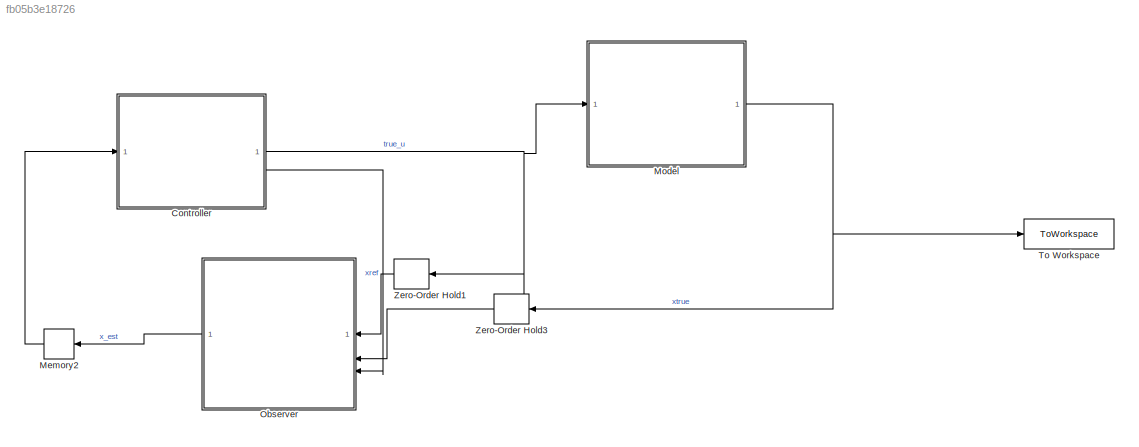
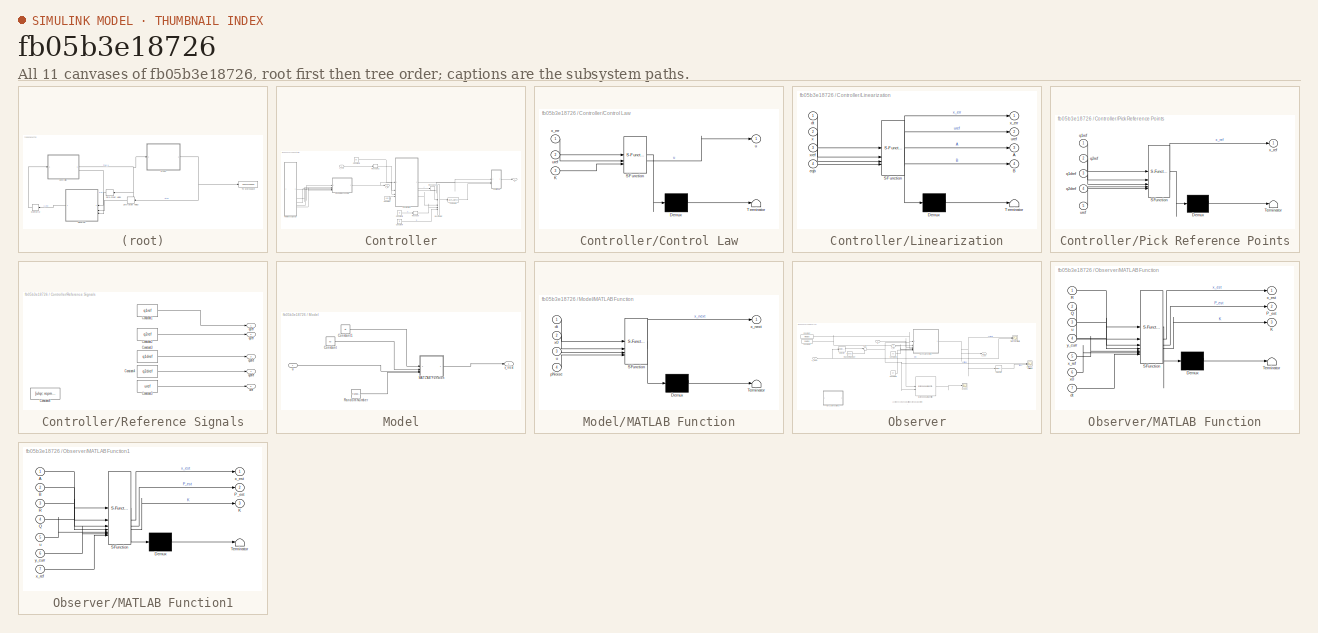
[diagram: thumbnail index - all 11 canvases of the model, root first then tree order]
MODEL slx_fb05b3e18726
KIND model
CONFIG AbsTol = auto
CONFIG EnableMultiTasking = off
CONFIG FixedStep = dt
CONFIG InitFcn = simpb_init
CONFIG MaxStep = auto
CONFIG MinStep = auto
CONFIG RelTol = 1e-3
CONFIG SampleTimeConstraint = Unconstrained
CONFIG SolverName = FixedStepAuto
CONFIG StartTime = 0.0
CONFIG StopTime = 10
BLOCK [SubSystem] Controller
BLOCK [BusCreator] Controller/Bus Creator
  DisplayOption = bar
  InheritFromInputs = on
  Inputs = 4
BLOCK [MATLABFcn] Controller/Compute K
  MATLABFcn = dlqr( reshape(u(1:16),4,4), reshape(u(17:20),4,1), reshape(u(21:36),4,4), u(37) )
  Output1D = off
  OutputDimensions = [1,4]
BLOCK [Constant] Controller/Constant
  Value = eqb
BLOCK [Constant] Controller/Constant1
  Value = dt
BLOCK [Constant] Controller/Constant6
  SampleTime = -1
  Value = Q
BLOCK [Constant] Controller/Constant7
  SampleTime = -1
  Value = R
BLOCK [SubSystem] Controller/Control Law
  ErrorFcn = Stateflow.Translate.translate
  PermitHierarchicalResolution = ExplicitOnly
  SFBlockType = MATLAB Function
  TreatAsAtomicUnit = on
BLOCK [Demux] Controller/Control Law/ Demux 
  Outputs = 1
BLOCK [S-Function] Controller/Control Law/ SFunction 
  EnableBusSupport = on
  FunctionName = sf_sfun
  PortCounts = [3 2]
  SFcnIsStateOwnerBlock = off
  SFunctionDeploymentMode = off
  Tag = Stateflow S-Function 4
BLOCK [Terminator] Controller/Control Law/ Terminator 
BLOCK [Inport] Controller/Control Law/K
  Port = 3
BLOCK [Outport] Controller/Control Law/u
BLOCK [Inport] Controller/Control Law/uref
  Port = 2
BLOCK [Inport] Controller/Control Law/x_err
BLOCK [SubSystem] Controller/Linearization
  ErrorFcn = Stateflow.Translate.translate
  PermitHierarchicalResolution = ExplicitOnly
  SFBlockType = MATLAB Function
  TreatAsAtomicUnit = on
BLOCK [Demux] Controller/Linearization/ Demux 
  Outputs = 1
BLOCK [S-Function] Controller/Linearization/ SFunction 
  EnableBusSupport = on
  FunctionName = sf_sfun
  PortCounts = [4 5]
  SFcnIsStateOwnerBlock = off
  SFunctionDeploymentMode = off
  Tag = Stateflow S-Function 2
BLOCK [Terminator] Controller/Linearization/ Terminator 
BLOCK [Outport] Controller/Linearization/A
  Port = 3
BLOCK [Outport] Controller/Linearization/B
  Port = 4
BLOCK [Inport] Controller/Linearization/dt
BLOCK [Inport] Controller/Linearization/eqb
  Port = 4
BLOCK [Outport] Controller/Linearization/uref
  Port = 2
BLOCK [Inport] Controller/Linearization/x
  Port = 2
BLOCK [Outport] Controller/Linearization/x_err
BLOCK [Inport] Controller/Linearization/xref
  Port = 3
BLOCK [SubSystem] Controller/Pick Reference Points
  ErrorFcn = Stateflow.Translate.translate
  PermitHierarchicalResolution = ExplicitOnly
  SFBlockType = MATLAB Function
  TreatAsAtomicUnit = on
BLOCK [Demux] Controller/Pick Reference Points/ Demux 
  Outputs = 1
BLOCK [S-Function] Controller/Pick Reference Points/ SFunction 
  EnableBusSupport = on
  FunctionName = sf_sfun
  PortCounts = [5 2]
  SFcnIsStateOwnerBlock = off
  SFunctionDeploymentMode = off
  Tag = Stateflow S-Function 3
BLOCK [Terminator] Controller/Pick Reference Points/ Terminator 
BLOCK [Inport] Controller/Pick Reference Points/q1dref
  Port = 3
BLOCK [Inport] Controller/Pick Reference Points/q1ref
BLOCK [Inport] Controller/Pick Reference Points/q2dref
  Port = 4
BLOCK [Inport] Controller/Pick Reference Points/q2ref
  Port = 2
BLOCK [Inport] Controller/Pick Reference Points/uref
  Port = 5
BLOCK [Outport] Controller/Pick Reference Points/x_ref
BLOCK [SubSystem] Controller/Reference Signals
BLOCK [Constant] Controller/Reference Signals/Constant1
  SampleTime = -1
  Value = q1ref
BLOCK [Constant] Controller/Reference Signals/Constant2
  SampleTime = -1
  Value = q2ref
BLOCK [Constant] Controller/Reference Signals/Constant3
  SampleTime = -1
  Value = q1dref
BLOCK [Constant] Controller/Reference Signals/Constant4
  SampleTime = -1
  Value = q2dref
BLOCK [Constant] Controller/Reference Signals/Constant5
  SampleTime = -1
  Value = uref
BLOCK [Constant] Controller/Reference Signals/Constant8
  Commented = on
  SampleTime = -1
  Value = [ulqr; repmat(ulqr(end), 10000, 1)]%ulqr
BLOCK [Outport] Controller/Reference Signals/q1dref
  Port = 3
BLOCK [Outport] Controller/Reference Signals/q1ref
BLOCK [Outport] Controller/Reference Signals/q2dref
  Port = 4
BLOCK [Outport] Controller/Reference Signals/q2ref
  Port = 2
BLOCK [Outport] Controller/Reference Signals/uref
  Port = 5
BLOCK [Reshape] Controller/Reshape
BLOCK [Reshape] Controller/Reshape1
BLOCK [Reshape] Controller/Reshape2
  OutputDimensionality = Customize
  OutputDimensions = [4,1]
BLOCK [Outport] Controller/u
BLOCK [Inport] Controller/x_curr
BLOCK [Outport] Controller/x_ref
  Port = 2
BLOCK [Memory] Memory2
  InitialCondition = x0
  NameLocation = top
BLOCK [SubSystem] Model
BLOCK [Constant] Model/Constant
  Value = x0
BLOCK [Constant] Model/Constant1
  Value = dt
BLOCK [SubSystem] Model/MATLAB Function
  ErrorFcn = Stateflow.Translate.translate
  PermitHierarchicalResolution = ExplicitOnly
  SFBlockType = MATLAB Function
  TreatAsAtomicUnit = on
BLOCK [Demux] Model/MATLAB Function/ Demux 
  Outputs = 1
BLOCK [S-Function] Model/MATLAB Function/ SFunction 
  EnableBusSupport = on
  FunctionName = sf_sfun
  PortCounts = [4 2]
  SFcnIsStateOwnerBlock = off
  SFunctionDeploymentMode = off
  Tag = Stateflow S-Function 1
BLOCK [Terminator] Model/MATLAB Function/ Terminator 
BLOCK [Inport] Model/MATLAB Function/dt
BLOCK [Inport] Model/MATLAB Function/pNoise
  Port = 4
BLOCK [Inport] Model/MATLAB Function/u
  Port = 3
BLOCK [Inport] Model/MATLAB Function/x0
  Port = 2
BLOCK [Outport] Model/MATLAB Function/x_next
BLOCK [RandomNumber] Model/Random Number
  SampleTime = dt
  Variance = pvar
BLOCK [Inport] Model/u
BLOCK [Outport] Model/x_next
BLOCK [SubSystem] Observer
  NameLocation = top
BLOCK [Constant] Observer/Constant
  Value = mNoise
BLOCK [Constant] Observer/Constant1
  Value = pNoise
BLOCK [Constant] Observer/Constant2
  Value = dt
BLOCK [Constant] Observer/Constant3
  Value = x0
BLOCK [Reference] Observer/Extended Kalman Filter  REF=sharedTrackingLibrary/Extended Kalman Filter
  LibrarySourceBlock = cstblocks/State Estimation/Extended Kalman Filter
  SourceBlock = sharedTrackingLibrary/Extended Kalman Filter
  SourceType = Extended Kalman Filter
BLOCK [Scope] Observer/Filtered vs Unfiltered
  Floating = off
  NumInputPorts = 2
  ScopeSpecificationString = Simulink.scopes.TimeScopeBlockCfg('CurrentConfiguration', extmgr.ConfigurationSet(extmgr.Configuration('Core','General UI',true),extmgr.Configuration('Core','Source UI',true),extmgr.Configuration('Sources','WiredSimulink',true,'DataLoggingVariableName','ScopeData1'),extmgr.Configuration('Visuals','Time Domain',true,'SerializedDisplays',{struct('MinYLimReal','-2.62895','MaxYLimReal','2.14154','YLab...<+1812ch>
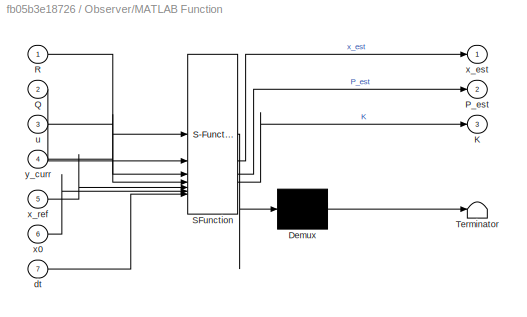
BLOCK [SubSystem] Observer/MATLAB Function
  ErrorFcn = Stateflow.Translate.translate
  PermitHierarchicalResolution = ExplicitOnly
  SFBlockType = MATLAB Function
  TreatAsAtomicUnit = on
BLOCK [Demux] Observer/MATLAB Function/ Demux 
  Outputs = 1
BLOCK [S-Function] Observer/MATLAB Function/ SFunction 
  EnableBusSupport = on
  FunctionName = sf_sfun
  PortCounts = [7 4]
  SFcnIsStateOwnerBlock = off
  SFunctionDeploymentMode = off
  Tag = Stateflow S-Function 5
BLOCK [Terminator] Observer/MATLAB Function/ Terminator 
BLOCK [Outport] Observer/MATLAB Function/K
  Port = 3
BLOCK [Outport] Observer/MATLAB Function/P_est
  Port = 2
BLOCK [Inport] Observer/MATLAB Function/Q
  Port = 2
BLOCK [Inport] Observer/MATLAB Function/R
BLOCK [Inport] Observer/MATLAB Function/dt
  Port = 7
BLOCK [Inport] Observer/MATLAB Function/u
  Port = 3
BLOCK [Inport] Observer/MATLAB Function/x0
  Port = 6
BLOCK [Outport] Observer/MATLAB Function/x_est
BLOCK [Inport] Observer/MATLAB Function/x_ref
  Port = 5
BLOCK [Inport] Observer/MATLAB Function/y_curr
  Port = 4
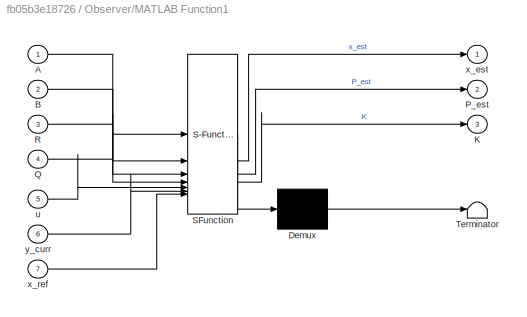
BLOCK [SubSystem] Observer/MATLAB Function1
  Commented = on
  ErrorFcn = Stateflow.Translate.translate
  PermitHierarchicalResolution = ExplicitOnly
  SFBlockType = MATLAB Function
  TreatAsAtomicUnit = on
BLOCK [Demux] Observer/MATLAB Function1/ Demux 
  Outputs = 1
BLOCK [S-Function] Observer/MATLAB Function1/ SFunction 
  EnableBusSupport = on
  FunctionName = sf_sfun
  PortCounts = [7 4]
  SFcnIsStateOwnerBlock = off
  SFunctionDeploymentMode = off
  Tag = Stateflow S-Function 6
BLOCK [Terminator] Observer/MATLAB Function1/ Terminator 
BLOCK [Inport] Observer/MATLAB Function1/A
BLOCK [Inport] Observer/MATLAB Function1/B
  Port = 2
BLOCK [Outport] Observer/MATLAB Function1/K
  Port = 3
BLOCK [Outport] Observer/MATLAB Function1/P_est
  Port = 2
BLOCK [Inport] Observer/MATLAB Function1/Q
  Port = 4
BLOCK [Inport] Observer/MATLAB Function1/R
  Port = 3
BLOCK [Inport] Observer/MATLAB Function1/u
  Port = 5
BLOCK [Outport] Observer/MATLAB Function1/x_est
BLOCK [Inport] Observer/MATLAB Function1/x_ref
  Port = 7
BLOCK [Inport] Observer/MATLAB Function1/y_curr
  Port = 6
BLOCK [RandomNumber] Observer/Random Number
  SampleTime = dt
  Variance = mvar
BLOCK [Scope] Observer/Scope2
  Floating = off
  NumInputPorts = 1
  ScopeSpecificationString = Simulink.scopes.TimeScopeBlockCfg('CurrentConfiguration', extmgr.ConfigurationSet(extmgr.Configuration('Core','General UI',true),extmgr.Configuration('Core','Source UI',true),extmgr.Configuration('Sources','WiredSimulink',true,'DataLoggingVariableName','ScopeData2'),extmgr.Configuration('Visuals','Time Domain',true,'SerializedDisplays',{struct('MinYLimReal','-198.59066','MaxYLimReal','202.07567','...<+1751ch>
BLOCK [Selector] Observer/Selector
  IndexOptions = Index vector (dialog)
  Indices = [1 2]
  InputPortWidth = 4
  OutputSizes = 1
BLOCK [Selector] Observer/Selector1
  IndexOptions = Index vector (dialog)
  Indices = [1 2]
  InputPortWidth = 4
  OutputSizes = 1
BLOCK [Sum] Observer/Sum
  Inputs = |++
BLOCK [Scope] Observer/Truth vs Estimate
  Floating = off
  NumInputPorts = 2
  ScopeSpecificationString = Simulink.scopes.TimeScopeBlockCfg('CurrentConfiguration', extmgr.ConfigurationSet(extmgr.Configuration('Core','General UI',true),extmgr.Configuration('Core','Source UI',true),extmgr.Configuration('Sources','WiredSimulink',true,'DataLoggingVariableName','ScopeData4'),extmgr.Configuration('Visuals','Time Domain',true,'SerializedDisplays',{struct('MinYLimReal','-15.99799','MaxYLimReal','16.14096','YL...<+1842ch>
BLOCK [Inport] Observer/u
BLOCK [Outport] Observer/x_est
BLOCK [Inport] Observer/x_next
  Port = 2
BLOCK [Inport] Observer/x_ref
  Port = 3
BLOCK [ToWorkspace] To Workspace
  FixptAsFi = on
  MaxDataPoints = inf
  SampleTime = -1
  SaveFormat = Timeseries
  VariableName = xcurrout
BLOCK [ZeroOrderHold] Zero-Order Hold1
  NameLocation = top
  SampleTime = dt
BLOCK [ZeroOrderHold] Zero-Order Hold3
  NameLocation = top
  SampleTime = dt
ANNOTATION Observer: Just for checking how built-in function would perform ,
LINE Controller/Bus Creator:1 -> Controller/Compute K:1
LINE Controller/Compute K:1 -> Controller/Control Law:3
LINE Controller/Constant1:1 -> Controller/Linearization:1
LINE Controller/Constant6:1 -> Controller/Reshape:1
LINE Controller/Constant7:1 -> Controller/Bus Creator:4
LINE Controller/Constant:1 -> Controller/Linearization:4
LINE Controller/Control Law:1 -> Controller/u:1
LINE Controller/Linearization:1 -> Controller/Control Law:1
LINE Controller/Linearization:2 -> Controller/Control Law:2
LINE Controller/Linearization:3 -> Controller/Reshape1:1
LINE Controller/Linearization:4 -> Controller/Bus Creator:2
NET Controller/Pick Reference Points:1 -> Controller/Linearization:3, Controller/x_ref:1
LINE Controller/Reference Signals/Constant1:1 -> Controller/Reference Signals/q1ref:1
LINE Controller/Reference Signals/Constant2:1 -> Controller/Reference Signals/q2ref:1
LINE Controller/Reference Signals/Constant3:1 -> Controller/Reference Signals/q1dref:1
LINE Controller/Reference Signals/Constant4:1 -> Controller/Reference Signals/q2dref:1
LINE Controller/Reference Signals/Constant5:1 -> Controller/Reference Signals/uref:1
LINE Controller/Reference Signals:1 -> Controller/Pick Reference Points:1
LINE Controller/Reference Signals:2 -> Controller/Pick Reference Points:2
LINE Controller/Reference Signals:3 -> Controller/Pick Reference Points:3
LINE Controller/Reference Signals:4 -> Controller/Pick Reference Points:4
LINE Controller/Reference Signals:5 -> Controller/Pick Reference Points:5
LINE Controller/Reshape1:1 -> Controller/Bus Creator:1
LINE Controller/Reshape2:1 -> Controller/Linearization:2
LINE Controller/Reshape:1 -> Controller/Bus Creator:3
LINE Controller/x_curr:1 -> Controller/Reshape2:1
NET Controller:1 -> Model:1, Zero-Order Hold1:1
LINE Controller:2 -> Observer:3
LINE Memory2:1 -> Controller:1
LINE Model/Constant1:1 -> Model/MATLAB Function:1
LINE Model/Constant:1 -> Model/MATLAB Function:2
LINE Model/MATLAB Function:1 -> Model/x_next:1
LINE Model/Random Number:1 -> Model/MATLAB Function:4
LINE Model/u:1 -> Model/MATLAB Function:3
NET Model:1 -> To Workspace:1, Zero-Order Hold3:1
LINE Observer/Constant1:1 -> Observer/MATLAB Function:2
LINE Observer/Constant2:1 -> Observer/MATLAB Function:7
LINE Observer/Constant3:1 -> Observer/MATLAB Function:6
LINE Observer/Constant:1 -> Observer/MATLAB Function:1
LINE Observer/Extended Kalman Filter:1 -> Observer/Scope2:1
NET Observer/MATLAB Function:1 -> Observer/Selector1:1, Observer/Truth vs Estimate:1, Observer/x_est:1
LINE Observer/Random Number:1 -> Observer/Sum:2
LINE Observer/Selector1:1 -> Observer/Filtered vs Unfiltered:2
LINE Observer/Selector:1 -> Observer/Sum:1
NET Observer/Sum:1 -> Observer/Extended Kalman Filter:2, Observer/Filtered vs Unfiltered:1, Observer/MATLAB Function:4
NET Observer/u:1 -> Observer/Extended Kalman Filter:1, Observer/MATLAB Function:3
NET Observer/x_next:1 -> Observer/Selector:1, Observer/Truth vs Estimate:2
LINE Observer/x_ref:1 -> Observer/MATLAB Function:5
LINE Observer:1 -> Memory2:1
LINE Zero-Order Hold1:1 -> Observer:1
LINE Zero-Order Hold3:1 -> Observer:2
note: NET lines group one-source signal fan-out (src -> all destinations, sorted); 1:1 wires keep LINE
CHART Model/MATLAB Function states=1 transitions=1
  STATE_LABEL 'eML_blk_kernel()'
  STATE_LABEL 'SCRIPT:\nfunction x_next = fcn(dt, x0, u, pNoise)\n\n%From REal pendulum in lab\np.theta1 = 0.0308; \np.theta2 = 0.0106;\np.theta3 = 0.0095;\np.theta4 = 0.2087;\np.theta5 = 0.063;\np.g = 9.8;\n\npersistent x;\nif isempty(x)\n    x = x0;\nend\n\nx_next = rk4_step(@(xx, uu) dx_pb_lqrreal(0,xx, uu, p), x, u,dt);\nx_next(1) = wrapToPi(x_next(1));\nx_next(2) = wrapToPi(x_next(2));\n\nx_next = x_next + pNoise;\nx = x_next;\n...<+4ch>'
CHART Controller/Linearization states=1 transitions=1
  STATE_LABEL 'eML_blk_kernel()'
  STATE_LABEL 'SCRIPT:\nfunction [x_err, uref, A,B]  = fcn(dt,x,xref, eqb)\n\n\nq1ref = xref(1);\nq2ref = xref(2);\nq1dref = xref(3);\nq2dref = xref(4);\nuref = xref(5);\n\nnorm([x(1);x(2)]-[pi/2;0])\n%Linearize about ref/equilibrium\nif (norm([x(1);x(2)]-[pi/2;0]) > 0.3)\n    %Linearize about current ref traj\n    A = Afunfile(q1ref, q2ref, q1dref, q2dref, uref);\n    B = Bfunfile(q1ref, q2ref, q1dref, q2dref, uref);\n    \n   ...<+409ch>'
CHART Controller/Pick Reference Points states=1 transitions=1
  STATE_LABEL 'eML_blk_kernel()'
  STATE_LABEL 'SCRIPT:\nfunction x_ref  = fcn(q1ref,q2ref,q1dref,q2dref, uref)\n\npersistent t;\nif isempty(t)\n    t = 1;\nelse \n    t = t+1;\nend\n\nt\nif t > length(q1ref)\n    x_ref = [pi/2;0;0;0;0];\nelse    \n    x_ref = [q1ref(t);q2ref(t);q1dref(t);q2dref(t);uref(t)];\n    \nend\n\n'
CHART Controller/Control Law states=1 transitions=1
  STATE_LABEL 'eML_blk_kernel()'
  STATE_LABEL 'SCRIPT:\nfunction u = fcn(x_err,uref,K)\npersistent K_prev;\nif isempty(K_prev)\n    K_prev = [0,0,0,0];\nend\n\n%Mitigating ill-behaved K\nif ~all(K_prev == 0)\n    if (K(3) > 5 || K(3) < -7)\n        K(3) = K_prev(3);\n    end\n    if (K(4) > 5 || K(4) < -7)\n        K(4) = K_prev(4);\n    end\n    if (K(1) > 0 || K(1) < -34)\n        K(1) = K_prev(1);\n    end\n    if (K(2) > 0 || K(2) < -34)\n        K(2) = K_pr...<+97ch>'
CHART Observer/MATLAB Function states=1 transitions=1
  STATE_LABEL 'eML_blk_kernel()'
  STATE_LABEL 'SCRIPT:\nfunction [x_est, P_est, K] = extended_kalman_filter(R, Q, u, y_curr, x_ref, x0, dt)\npersistent x;\nif isempty(x)\n    x = x0;\nend\npersistent P;\nif isempty(P)\n    P = eye(4)*1e-6;\nend\n\n%From REal pendulum in lab\np.theta1 = 0.0308; \np.theta2 = 0.0106;\np.theta3 = 0.0095;\np.theta4 = 0.2087;\np.theta5 = 0.063;\np.g = 9.8;\n\nxr = x_ref(1:4);\n\nC = [1 0 0 0;\n    0 1 0 0];\n\n\nx_pred = rk4_step(@(xx, uu) ...<+586ch>'
CHART Observer/MATLAB Function1 states=1 transitions=1
  STATE_LABEL 'eML_blk_kernel()'
  STATE_LABEL "SCRIPT:\nfunction [x_est, P_est, K] = kalman_filter(A, B,R, Q, u, y_curr, x_ref)\npersistent x;\nif isempty(x)\n    x = [-pi/2;0;0;0];\nend\npersistent P;\nif isempty(P)\n    P = eye(4)*1e-6;\nend\n\nxr = x_ref(1:4);\n\nC = [1 0 0 0;\n    0 1 0 0];\n\nx_pred = A*(x-xr) + xr + B*(u - x_ref(5)); %error + xref\n%x_pred(1) = wrapToPi(1);\n%x_pred(2) = wrapToPi(2);\nP_pred = A*P*A' + Q;\nP_est = P_pred;\nfor n=1:1000\n    P...<+370ch>"
CHART  states=0 transitions=0
CHART  states=0 transitions=0
CHART  states=0 transitions=0
CHART  states=0 transitions=0
CHART  states=0 transitions=0
CHART  states=0 transitions=0
